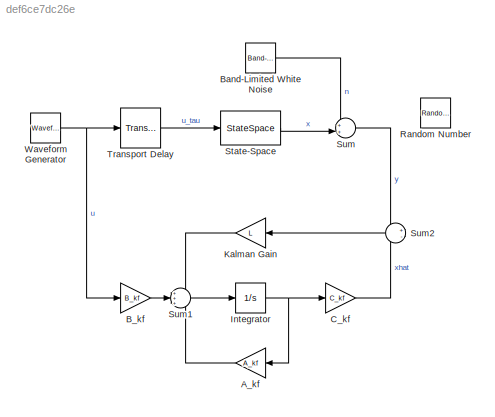
MODEL slx_def6ce7dc26e
KIND model
CONFIG AbsTol = auto
CONFIG EnableMultiTasking = off
CONFIG FixedStep = STEP_SIZE
CONFIG MaxStep = auto
CONFIG MinStep = auto
CONFIG RelTol = 1e-3
CONFIG SampleTimeConstraint = Unconstrained
CONFIG SolverName = ode4
CONFIG StartTime = 0.0
CONFIG StopTime = SIM_TIME
BLOCK [Gain] A_kf
  Gain = A_kf
  Multiplication = Matrix(K*u) (u vector)
BLOCK [Gain] B_kf
  Gain = B_kf
  Multiplication = Matrix(K*u) (u vector)
BLOCK [Reference] Band-Limited White Noise  REF=simulink/Sources/Band-Limited
White Noise
  Ports = [0, 1]
  SourceBlock = simulink/Sources/Band-Limited\nWhite Noise
  SourceProductBaseCode = SL
  SourceType = Band-Limited White Noise.
BLOCK [Gain] C_kf
  Gain = C_kf
  Multiplication = Matrix(K*u) (u vector)
BLOCK [Integrator] Integrator
  InitialCondition = xhat0
  Ports = [1, 1]
BLOCK [Gain] Kalman Gain
  Gain = L
  Multiplication = Matrix(K*u) (u vector)
BLOCK [RandomNumber] Random Number
  SampleTime = 0.1
BLOCK [StateSpace] State-Space
  A = A
  B = B
  C = C
  D = D
  InitialCondition = x0
  Ports = [1, 1]
BLOCK [Sum] Sum
  Inputs = ++|
  Ports = [2, 1]
BLOCK [Sum] Sum1
  Inputs = +++
  Ports = [3, 1]
BLOCK [Sum] Sum2
  Inputs = +-
  Ports = [2, 1]
BLOCK [TransportDelay] Transport Delay
  DelayTime = T
  Ports = [1, 1]
BLOCK [Reference] Waveform Generator  REF=simulink/Sources/Waveform
Generator
  Ports = [0, 1]
  SourceBlock = simulink/Sources/Waveform\nGenerator
  SourceProductBaseCode = SL
  SourceType = WaveformGenerator
LINE A_kf:1 -> Sum1:3
LINE B_kf:1 -> Sum1:2
LINE Band-Limited White Noise:1 -> Sum:1
LINE C_kf:1 -> Sum2:2
NET Integrator:1 -> A_kf:1, C_kf:1
LINE Kalman Gain:1 -> Sum1:1
LINE State-Space:1 -> Sum:2
LINE Sum1:1 -> Integrator:1
LINE Sum2:1 -> Kalman Gain:1
LINE Sum:1 -> Sum2:1
LINE Transport Delay:1 -> State-Space:1
NET Waveform Generator:1 -> B_kf:1, Transport Delay:1
note: NET lines group one-source signal fan-out (src -> all destinations, sorted); 1:1 wires keep LINE
